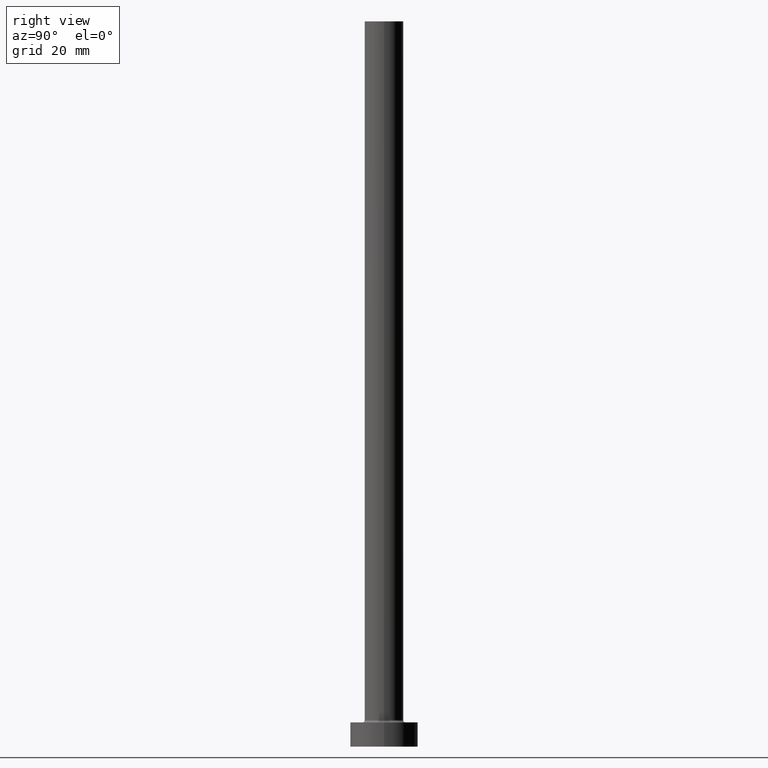
[diagram: clean part render]
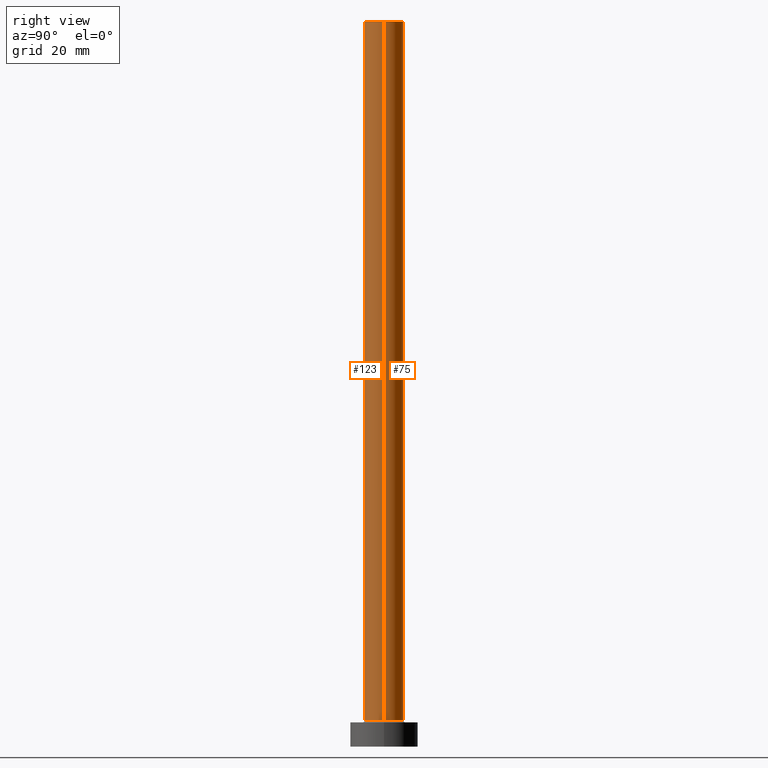
[diagram: same view with one multi-face feature highlighted, each face labeled with its STEP entity id]
A machine part, right view. The highlighted faces form ONE feature: a constant-radius fillet chain: 2 tangent blend faces with common blend radius 4 mm. The faces share edges in the B-rep.
Their STEP definitions:
[1] entity #75 (Cylinder):
#8 = DIRECTION ( 'NONE',  ( -0.000000000000000000, -0.000000000000000000, -1.000000000000000000 ) ) ;
#21 = CARTESIAN_POINT ( 'NONE',  ( -4.000000000000000000, 0.000000000000000000, 150.0000000000000000 ) ) ;
#27 = CARTESIAN_POINT ( 'NONE',  ( 4.000000000000000000, 4.898587196589412829E-16, 150.0000000000000000 ) ) ;
#54 = VERTEX_POINT ( 'NONE', #217 ) ;
#62 = ORIENTED_EDGE ( 'NONE', *, *, #212, .F. ) ;
#63 = CYLINDRICAL_SURFACE ( 'NONE', #393, 4.000000000000000000 ) ;
#66 = EDGE_CURVE ( 'NONE', #54, #208, #127, .T. ) ;
#75 = ADVANCED_FACE ( 'NONE', ( #272 ), #63, .T. ) ;
#81 = CARTESIAN_POINT ( 'NONE',  ( -4.000000000000000000, 0.000000000000000000, 5.500000000000005329 ) ) ;
#84 = VECTOR ( 'NONE', #8, 1000.000000000000000 ) ;
#86 = LINE ( 'NONE', #446, #84 ) ;
#102 = AXIS2_PLACEMENT_3D ( 'NONE', #325, #222, #335 ) ;
#127 = CIRCLE ( 'NONE', #305, 4.000000000000000000 ) ;
#166 = EDGE_CURVE ( 'NONE', #412, #371, #197, .T. ) ;
#170 = ORIENTED_EDGE ( 'NONE', *, *, #66, .T. ) ;
#173 = DIRECTION ( 'NONE',  ( -0.000000000000000000, -0.000000000000000000, -1.000000000000000000 ) ) ;
#175 = CARTESIAN_POINT ( 'NONE',  ( 4.000000000000000000, 4.898587196589412829E-16, 150.0000000000000000 ) ) ;
#183 = CARTESIAN_POINT ( 'NONE',  ( 0.000000000000000000, 0.000000000000000000, 5.500000000000005329 ) ) ;
#197 = CIRCLE ( 'NONE', #102, 4.000000000000000000 ) ;
#208 = VERTEX_POINT ( 'NONE', #81 ) ;
#212 = EDGE_CURVE ( 'NONE', #371, #208, #86, .T. ) ;
#217 = CARTESIAN_POINT ( 'NONE',  ( 4.000000000000000000, 4.898587196589412829E-16, 5.500000000000005329 ) ) ;
#222 = DIRECTION ( 'NONE',  ( 0.000000000000000000, 0.000000000000000000, 1.000000000000000000 ) ) ;
#271 = CARTESIAN_POINT ( 'NONE',  ( 0.000000000000000000, 0.000000000000000000, 150.0000000000000000 ) ) ;
#272 = FACE_OUTER_BOUND ( 'NONE', #429, .T. ) ;
#276 = ORIENTED_EDGE ( 'NONE', *, *, #418, .T. ) ;
#281 = DIRECTION ( 'NONE',  ( -0.000000000000000000, -0.000000000000000000, -1.000000000000000000 ) ) ;
#289 = ORIENTED_EDGE ( 'NONE', *, *, #166, .F. ) ;
#301 = DIRECTION ( 'NONE',  ( 0.000000000000000000, 0.000000000000000000, 1.000000000000000000 ) ) ;
#305 = AXIS2_PLACEMENT_3D ( 'NONE', #183, #301, #332 ) ;
#325 = CARTESIAN_POINT ( 'NONE',  ( 0.000000000000000000, 0.000000000000000000, 150.0000000000000000 ) ) ;
#332 = DIRECTION ( 'NONE',  ( 1.000000000000000000, 0.000000000000000000, 0.000000000000000000 ) ) ;
#335 = DIRECTION ( 'NONE',  ( 1.000000000000000000, 0.000000000000000000, 0.000000000000000000 ) ) ;
#345 = VECTOR ( 'NONE', #281, 1000.000000000000000 ) ;
#346 = LINE ( 'NONE', #175, #345 ) ;
#371 = VERTEX_POINT ( 'NONE', #21 ) ;
#393 = AXIS2_PLACEMENT_3D ( 'NONE', #271, #173, #421 ) ;
#412 = VERTEX_POINT ( 'NONE', #27 ) ;
#418 = EDGE_CURVE ( 'NONE', #412, #54, #346, .T. ) ;
#421 = DIRECTION ( 'NONE',  ( -1.000000000000000000, 0.000000000000000000, 0.000000000000000000 ) ) ;
#429 = EDGE_LOOP ( 'NONE', ( #289, #276, #170, #62 ) ) ;
#446 = CARTESIAN_POINT ( 'NONE',  ( -4.000000000000000000, 0.000000000000000000, 150.0000000000000000 ) ) ;
[2] entity #123 (Cylinder):
#8 = DIRECTION ( 'NONE',  ( -0.000000000000000000, -0.000000000000000000, -1.000000000000000000 ) ) ;
#21 = CARTESIAN_POINT ( 'NONE',  ( -4.000000000000000000, 0.000000000000000000, 150.0000000000000000 ) ) ;
#27 = CARTESIAN_POINT ( 'NONE',  ( 4.000000000000000000, 4.898587196589412829E-16, 150.0000000000000000 ) ) ;
#28 = FACE_OUTER_BOUND ( 'NONE', #29, .T. ) ;
#29 = EDGE_LOOP ( 'NONE', ( #262, #278, #376, #243 ) ) ;
#54 = VERTEX_POINT ( 'NONE', #217 ) ;
#64 = DIRECTION ( 'NONE',  ( -0.000000000000000000, -0.000000000000000000, -1.000000000000000000 ) ) ;
#68 = AXIS2_PLACEMENT_3D ( 'NONE', #458, #64, #209 ) ;
#81 = CARTESIAN_POINT ( 'NONE',  ( -4.000000000000000000, 0.000000000000000000, 5.500000000000005329 ) ) ;
#84 = VECTOR ( 'NONE', #8, 1000.000000000000000 ) ;
#86 = LINE ( 'NONE', #446, #84 ) ;
#91 = EDGE_CURVE ( 'NONE', #208, #54, #188, .T. ) ;
#123 = ADVANCED_FACE ( 'NONE', ( #28 ), #425, .T. ) ;
#144 = CARTESIAN_POINT ( 'NONE',  ( 0.000000000000000000, 0.000000000000000000, 150.0000000000000000 ) ) ;
#164 = CARTESIAN_POINT ( 'NONE',  ( 0.000000000000000000, 0.000000000000000000, 5.500000000000005329 ) ) ;
#175 = CARTESIAN_POINT ( 'NONE',  ( 4.000000000000000000, 4.898587196589412829E-16, 150.0000000000000000 ) ) ;
#184 = DIRECTION ( 'NONE',  ( 1.000000000000000000, 0.000000000000000000, 0.000000000000000000 ) ) ;
#188 = CIRCLE ( 'NONE', #265, 4.000000000000000000 ) ;
#208 = VERTEX_POINT ( 'NONE', #81 ) ;
#209 = DIRECTION ( 'NONE',  ( -1.000000000000000000, 0.000000000000000000, 0.000000000000000000 ) ) ;
#212 = EDGE_CURVE ( 'NONE', #371, #208, #86, .T. ) ;
#217 = CARTESIAN_POINT ( 'NONE',  ( 4.000000000000000000, 4.898587196589412829E-16, 5.500000000000005329 ) ) ;
#221 = EDGE_CURVE ( 'NONE', #371, #412, #329, .T. ) ;
#243 = ORIENTED_EDGE ( 'NONE', *, *, #91, .T. ) ;
#262 = ORIENTED_EDGE ( 'NONE', *, *, #418, .F. ) ;
#265 = AXIS2_PLACEMENT_3D ( 'NONE', #164, #267, #416 ) ;
#267 = DIRECTION ( 'NONE',  ( 0.000000000000000000, 0.000000000000000000, 1.000000000000000000 ) ) ;
#278 = ORIENTED_EDGE ( 'NONE', *, *, #221, .F. ) ;
#281 = DIRECTION ( 'NONE',  ( -0.000000000000000000, -0.000000000000000000, -1.000000000000000000 ) ) ;
#315 = AXIS2_PLACEMENT_3D ( 'NONE', #144, #402, #184 ) ;
#329 = CIRCLE ( 'NONE', #315, 4.000000000000000000 ) ;
#345 = VECTOR ( 'NONE', #281, 1000.000000000000000 ) ;
#346 = LINE ( 'NONE', #175, #345 ) ;
#371 = VERTEX_POINT ( 'NONE', #21 ) ;
#376 = ORIENTED_EDGE ( 'NONE', *, *, #212, .T. ) ;
#402 = DIRECTION ( 'NONE',  ( 0.000000000000000000, 0.000000000000000000, 1.000000000000000000 ) ) ;
#412 = VERTEX_POINT ( 'NONE', #27 ) ;
#416 = DIRECTION ( 'NONE',  ( 1.000000000000000000, 0.000000000000000000, 0.000000000000000000 ) ) ;
#418 = EDGE_CURVE ( 'NONE', #412, #54, #346, .T. ) ;
#425 = CYLINDRICAL_SURFACE ( 'NONE', #68, 4.000000000000000000 ) ;
#446 = CARTESIAN_POINT ( 'NONE',  ( -4.000000000000000000, 0.000000000000000000, 150.0000000000000000 ) ) ;
#458 = CARTESIAN_POINT ( 'NONE',  ( 0.000000000000000000, 0.000000000000000000, 150.0000000000000000 ) ) ;